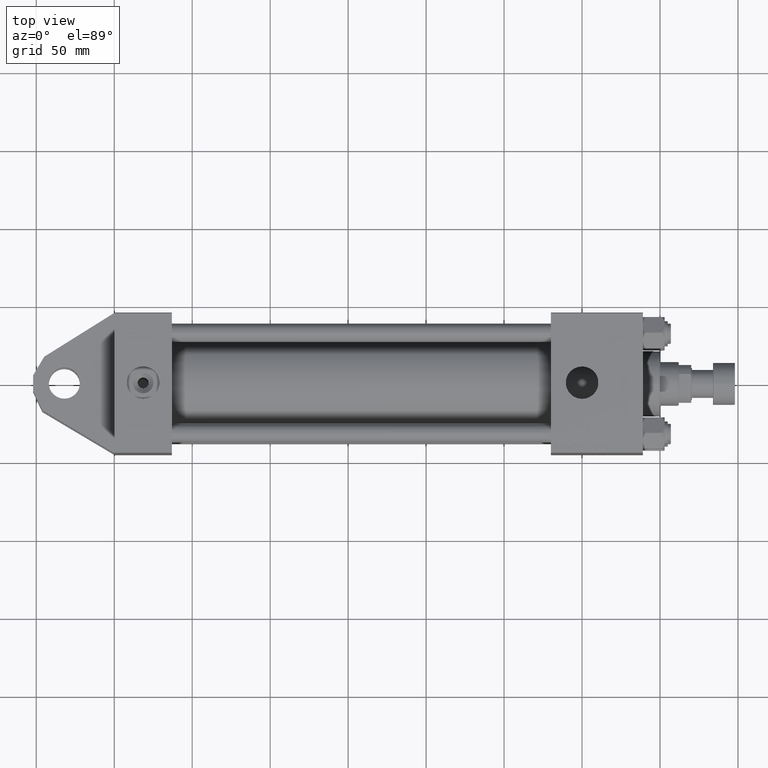
[diagram: clean part render]
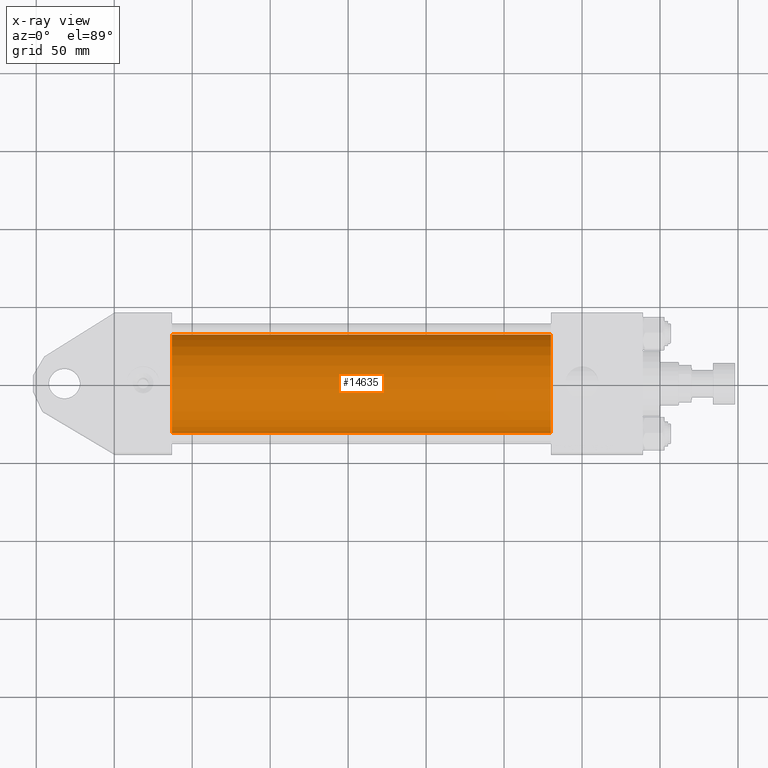
[diagram: x-ray — body ghosted, one internal face saturated and labeled with its STEP entity id]
A machine part, top view, then the same camera in x-ray: the body is ghosted and one INTERNAL B-rep face — a face not visible from any outside direction — is saturated and labeled: STEP entity #14635.
In plain terms, the highlighted cylindrical surface (partial cylindrical patch) has radius 31.5 mm, axis along (-1, -0, 0).
Its self-contained STEP definition (entity closure, byte-faithful):
#2080 = VERTEX_POINT ( 'NONE', #32545 ) ;
#2132 = DIRECTION ( 'NONE',  ( -1.000000000000000000, -0.000000000000000000, -0.000000000000000000 ) ) ;
#2925 = LINE ( 'NONE', #42871, #44402 ) ;
#6386 = VECTOR ( 'NONE', #40663, 1000.000000000000000 ) ;
#7520 = CARTESIAN_POINT ( 'NONE',  ( 37.00000000000000000, -3.469446951953614189E-15, 31.50000000000000000 ) ) ;
#7815 = EDGE_CURVE ( 'NONE', #2080, #8492, #12928, .T. ) ;
#8492 = VERTEX_POINT ( 'NONE', #11514 ) ;
#8496 = VERTEX_POINT ( 'NONE', #7520 ) ;
#11304 = DIRECTION ( 'NONE',  ( 0.000000000000000000, 0.000000000000000000, -1.000000000000000000 ) ) ;
#11514 = CARTESIAN_POINT ( 'NONE',  ( 279.9999999999999432, 3.881904653605483521E-16, -31.50000000000000000 ) ) ;
#12928 = CIRCLE ( 'NONE', #29832, 31.50000000000000000 ) ;
#14374 = EDGE_CURVE ( 'NONE', #2080, #8496, #48322, .T. ) ;
#14635 = ADVANCED_FACE ( 'NONE', ( #51265 ), #15080, .F. ) ;
#15080 = CYLINDRICAL_SURFACE ( 'NONE', #43543, 31.50000000000000000 ) ;
#15478 = ORIENTED_EDGE ( 'NONE', *, *, #47539, .T. ) ;
#15863 = CARTESIAN_POINT ( 'NONE',  ( 279.9999999999999432, -3.469446951953614189E-15, 0.000000000000000000 ) ) ;
#22752 = DIRECTION ( 'NONE',  ( 0.000000000000000000, 0.000000000000000000, 1.000000000000000000 ) ) ;
#23715 = DIRECTION ( 'NONE',  ( 1.000000000000000000, 0.000000000000000000, 0.000000000000000000 ) ) ;
#27845 = ORIENTED_EDGE ( 'NONE', *, *, #7815, .T. ) ;
#29097 = CIRCLE ( 'NONE', #33331, 31.50000000000000000 ) ;
#29832 = AXIS2_PLACEMENT_3D ( 'NONE', #15863, #35175, #51517 ) ;
#30454 = DIRECTION ( 'NONE',  ( -1.000000000000000000, -0.000000000000000000, -0.000000000000000000 ) ) ;
#30877 = CARTESIAN_POINT ( 'NONE',  ( 37.00000000000000000, -3.469446951953614189E-15, 0.000000000000000000 ) ) ;
#32545 = CARTESIAN_POINT ( 'NONE',  ( 279.9999999999999432, -3.469446951953614189E-15, 31.50000000000000000 ) ) ;
#33331 = AXIS2_PLACEMENT_3D ( 'NONE', #30877, #23715, #11304 ) ;
#34458 = ORIENTED_EDGE ( 'NONE', *, *, #14374, .F. ) ;
#35175 = DIRECTION ( 'NONE',  ( 1.000000000000000000, 0.000000000000000000, 0.000000000000000000 ) ) ;
#39633 = EDGE_LOOP ( 'NONE', ( #27845, #15478, #46514, #34458 ) ) ;
#40663 = DIRECTION ( 'NONE',  ( -1.000000000000000000, -0.000000000000000000, -0.000000000000000000 ) ) ;
#41219 = CARTESIAN_POINT ( 'NONE',  ( 37.00000000000000000, 3.881904653605483521E-16, -31.50000000000000000 ) ) ;
#42871 = CARTESIAN_POINT ( 'NONE',  ( 279.9999999999999432, 3.881904653605483521E-16, -31.50000000000000000 ) ) ;
#43329 = VERTEX_POINT ( 'NONE', #41219 ) ;
#43528 = EDGE_CURVE ( 'NONE', #8496, #43329, #29097, .T. ) ;
#43543 = AXIS2_PLACEMENT_3D ( 'NONE', #50744, #2132, #22752 ) ;
#44402 = VECTOR ( 'NONE', #30454, 1000.000000000000000 ) ;
#46514 = ORIENTED_EDGE ( 'NONE', *, *, #43528, .F. ) ;
#47539 = EDGE_CURVE ( 'NONE', #8492, #43329, #2925, .T. ) ;
#48322 = LINE ( 'NONE', #50783, #6386 ) ;
#50744 = CARTESIAN_POINT ( 'NONE',  ( 279.9999999999999432, -3.469446951953614189E-15, 0.000000000000000000 ) ) ;
#50783 = CARTESIAN_POINT ( 'NONE',  ( 279.9999999999999432, -3.469446951953614189E-15, 31.50000000000000000 ) ) ;
#51265 = FACE_OUTER_BOUND ( 'NONE', #39633, .T. ) ;
#51517 = DIRECTION ( 'NONE',  ( 0.000000000000000000, 0.000000000000000000, -1.000000000000000000 ) ) ;